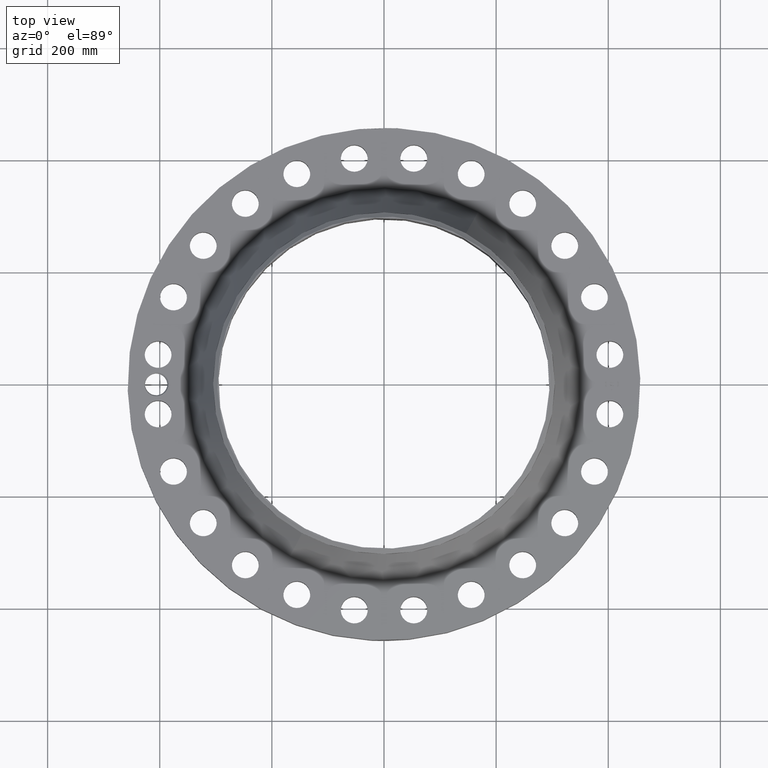
[diagram: clean part render]
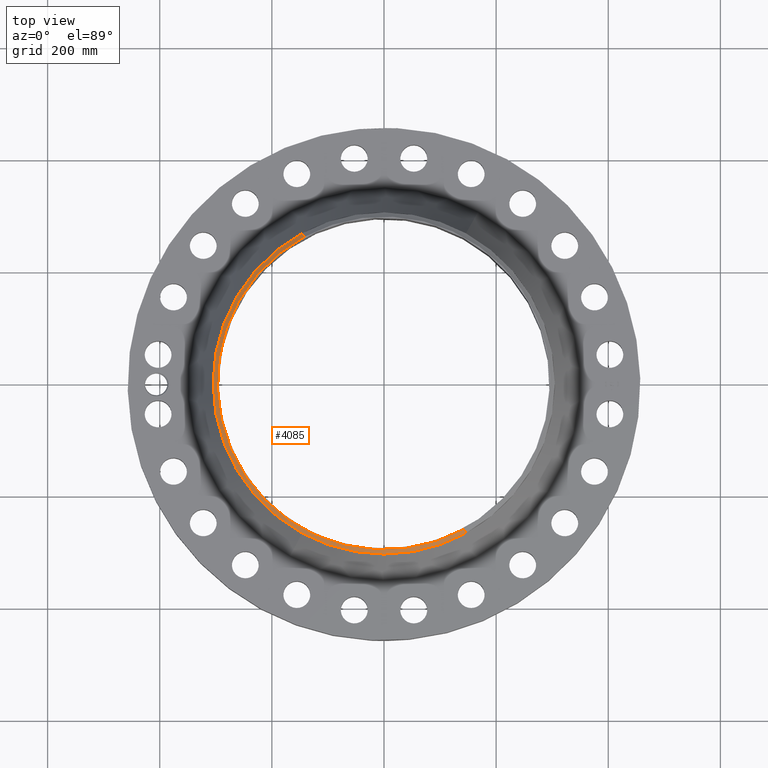
[diagram: same view with one face highlighted and labeled with its STEP entity id]
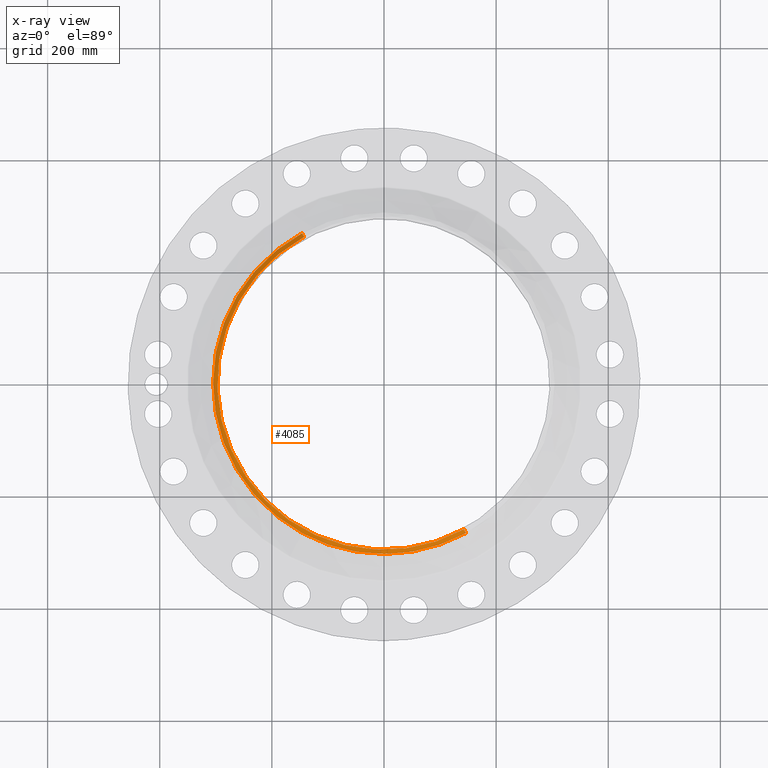
[diagram: x-ray of the same camera — body ghosted, the highlighted face saturated]
A machine part, top view. The second image highlights one B-rep face of the part: STEP entity #4085.
The next image is the same camera in x-ray: the body ghosted, the highlighted face saturated — about 0% of this face is hidden behind the body in this view.
In plain terms, the highlighted conical surface has half-angle 52.5 deg.
Its self-contained STEP definition (entity closure, byte-faithful):
#3217=AXIS2_PLACEMENT_3D('Circle Axis2P3D',#3215,#3216,$) ;
#4050=AXIS2_PLACEMENT_3D('Cone Axis2P3D',#4047,#4048,#4049) ;
#4068=AXIS2_PLACEMENT_3D('Circle Axis2P3D',#4066,#4067,$) ;
#4075=AXIS2_PLACEMENT_3D('Circle Axis2P3D',#4073,#4074,$) ;
#3210=CARTESIAN_POINT('Vertex',(5.61107192871,-10.2709982711,7.13000000003)) ;
#3212=CARTESIAN_POINT('Vertex',(-5.61107192871,10.2709982711,7.13000000003)) ;
#3215=CARTESIAN_POINT('Axis2P3D Location',(0.,0.,7.13000000003)) ;
#4047=CARTESIAN_POINT('Axis2P3D Location',(0.,0.,7.13000000003)) ;
#4052=CARTESIAN_POINT('Line Origine',(5.68208919599,-10.4009945069,7.01633591372)) ;
#4056=CARTESIAN_POINT('Vertex',(5.75310646327,-10.5309907427,6.90267182741)) ;
#4059=CARTESIAN_POINT('Line Origine',(-5.68208919599,10.4009945069,7.01633591372)) ;
#4063=CARTESIAN_POINT('Vertex',(-5.75310646327,10.5309907427,6.90267182741)) ;
#4066=CARTESIAN_POINT('Axis2P3D Location',(0.,0.,6.90267182741)) ;
#4070=CARTESIAN_POINT('Vertex',(-5.75310646327,-10.5309907427,6.90267182741)) ;
#4073=CARTESIAN_POINT('Axis2P3D Location',(0.,0.,6.90267182741)) ;
#3216=DIRECTION('Axis2P3D Direction',(0.,0.,-0.0393700787402)) ;
#4048=DIRECTION('Axis2P3D Direction',(-0.,-0.,-0.0393700787402)) ;
#4049=DIRECTION('Axis2P3D XDirection',(-0.0188750212049,0.0345504945626,0.)) ;
#4053=DIRECTION('Vector Direction',(0.014974561121,-0.02741075027,-0.023966985394)) ;
#4060=DIRECTION('Vector Direction',(-0.014974561121,0.02741075027,-0.023966985394)) ;
#4067=DIRECTION('Axis2P3D Direction',(0.,0.,-0.0393700787402)) ;
#4074=DIRECTION('Axis2P3D Direction',(0.,0.,-0.0393700787402)) ;
#4054=VECTOR('Line Direction',#4053,0.0393700787402) ;
#4061=VECTOR('Line Direction',#4060,0.0393700787402) ;
#4079=ORIENTED_EDGE('',*,*,#4058,.F.) ;
#4080=ORIENTED_EDGE('',*,*,#3219,.F.) ;
#4081=ORIENTED_EDGE('',*,*,#4065,.T.) ;
#4082=ORIENTED_EDGE('',*,*,#4072,.T.) ;
#4083=ORIENTED_EDGE('',*,*,#4077,.F.) ;
#4085=ADVANCED_FACE('PartBody',(#4084),#4051,.T.) ;
#3218=CIRCLE('generated circle',#3217,11.7037401575) ;
#4069=CIRCLE('generated circle',#4068,12.) ;
#4076=CIRCLE('generated circle',#4075,12.) ;
#4051=CONICAL_SURFACE('Cone',#4050,11.7037401575,0.916297857297) ;
#3219=EDGE_CURVE('',#3213,#3211,#3218,.F.) ;
#4058=EDGE_CURVE('',#3211,#4057,#4055,.T.) ;
#4065=EDGE_CURVE('',#3213,#4064,#4062,.T.) ;
#4072=EDGE_CURVE('',#4064,#4071,#4069,.F.) ;
#4077=EDGE_CURVE('',#4057,#4071,#4076,.T.) ;
#4078=EDGE_LOOP('',(#4079,#4080,#4081,#4082,#4083)) ;
#4084=FACE_OUTER_BOUND('',#4078,.T.) ;
#4055=LINE('Line',#4052,#4054) ;
#4062=LINE('Line',#4059,#4061) ;
#3211=VERTEX_POINT('',#3210) ;
#3213=VERTEX_POINT('',#3212) ;
#4057=VERTEX_POINT('',#4056) ;
#4064=VERTEX_POINT('',#4063) ;
#4071=VERTEX_POINT('',#4070) ;